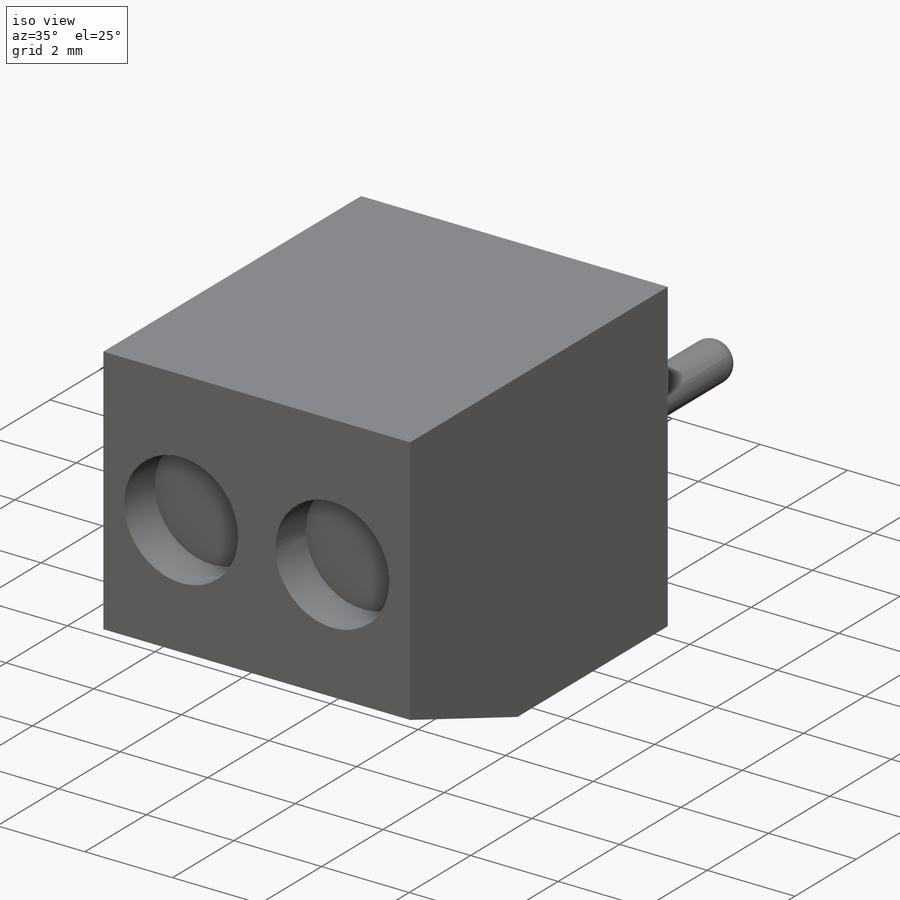
[diagram: iso view]
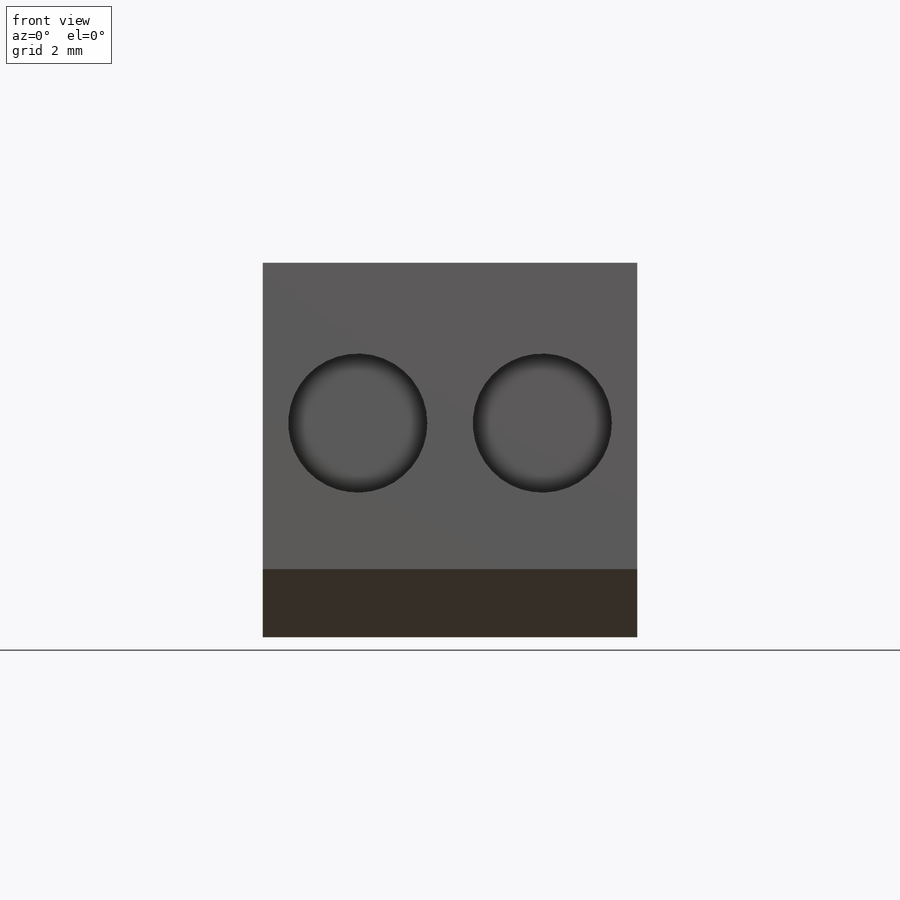
[diagram: front view]
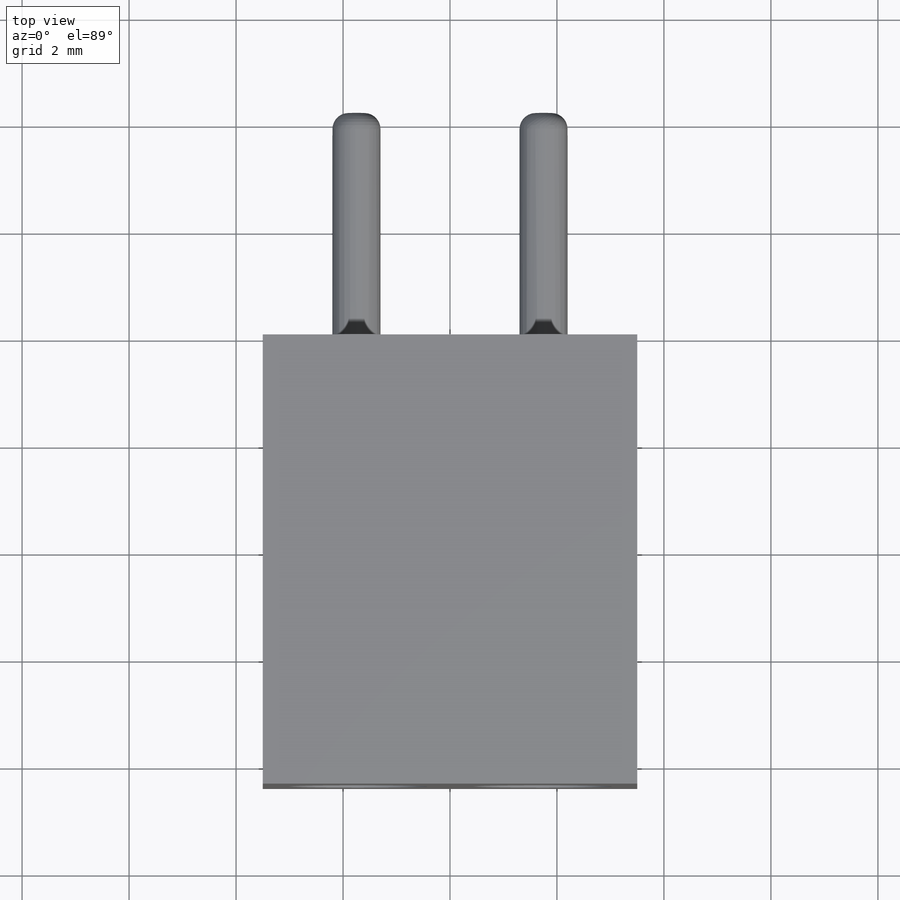
[diagram: top view]
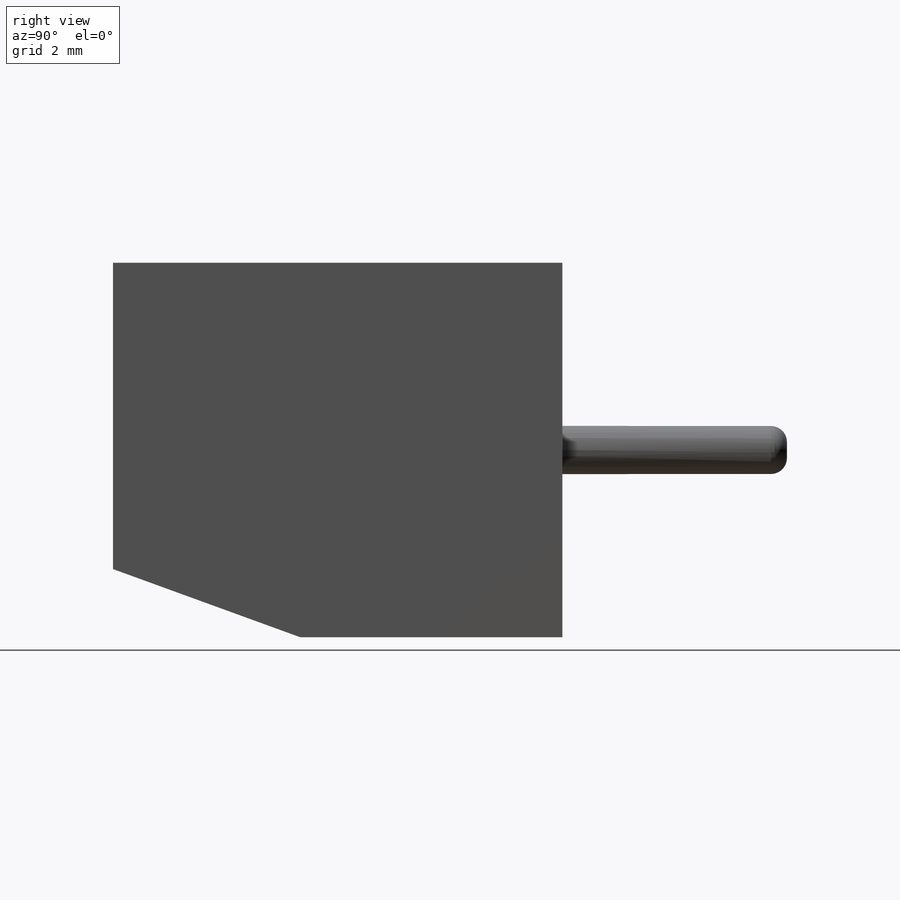
[diagram: right view]
SOLIDWORKS PART (.sldprt)
format: sldprt  version: not decoded by parser v0  size: 233,984 bytes
history: native  units: mm
features: sketch x5, cut_extrude x3, extrude x2, material x1, chamfer x1, fillet x1 (+12 scaffold rows collapsed)
feature tree (25):
  scaffold x12  (default folders/planes/origin — collapsed)
  material  "Material <not specified>"
  sketch  "Sketch1"  dims[D1=7.0mm D2=7.0mm]
  extrude  "Boss-Extrude1"  Depth=8.4mm
  chamfer  "Chamfer1"  Distance=3.5mm Angle=20deg
  sketch  "Sketch2"  dims[D1=0.6mm D2=0.35mm D3=0.5mm D4=4.2mm]
  cut_extrude  "Cut-Extrude1"  Depth=1.8mm
  sketch  "Sketch3"  dims[D1=2.0mm]
  cut_extrude  "Cut-Extrude2"  Depth=1mm
  sketch  "Sketch4"  dims[D1=2.6mm D2=3.0mm]
  cut_extrude  "Cut-Extrude3"  Depth=1mm
  sketch  "Sketch5"  dims[D1=0.9mm D2=3.5mm]
  extrude  "Boss-Extrude2"  Depth=4.2mm
  fillet  "Fillet1"  Radius=0.3mm
decode coverage: 12 of 12 modeling features carry decoded parameters
note: suppression state not decoded; provenance and decode notes live in map.json
